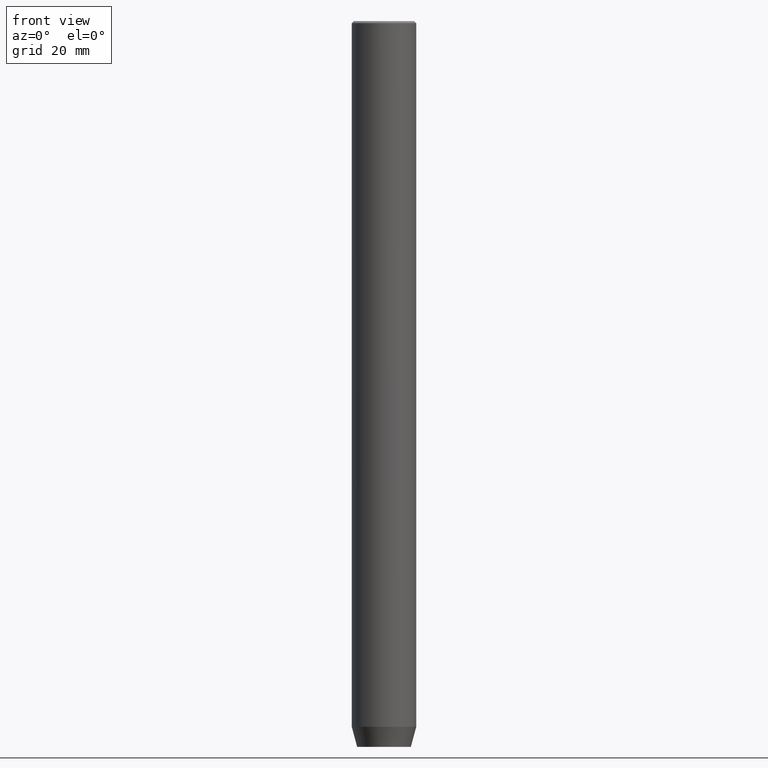
[diagram: clean part render]
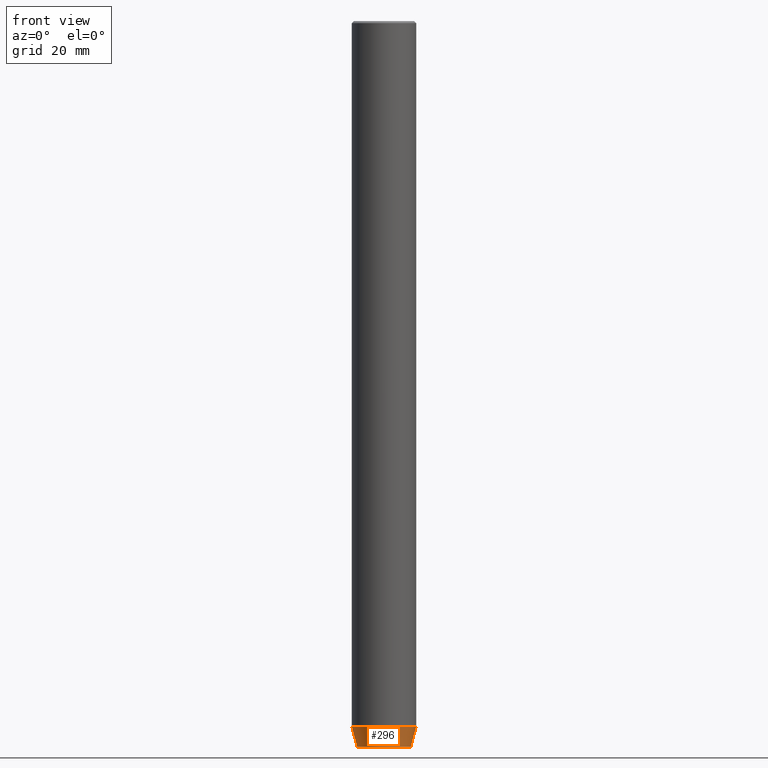
[diagram: same view with one face highlighted and labeled with its STEP entity id]
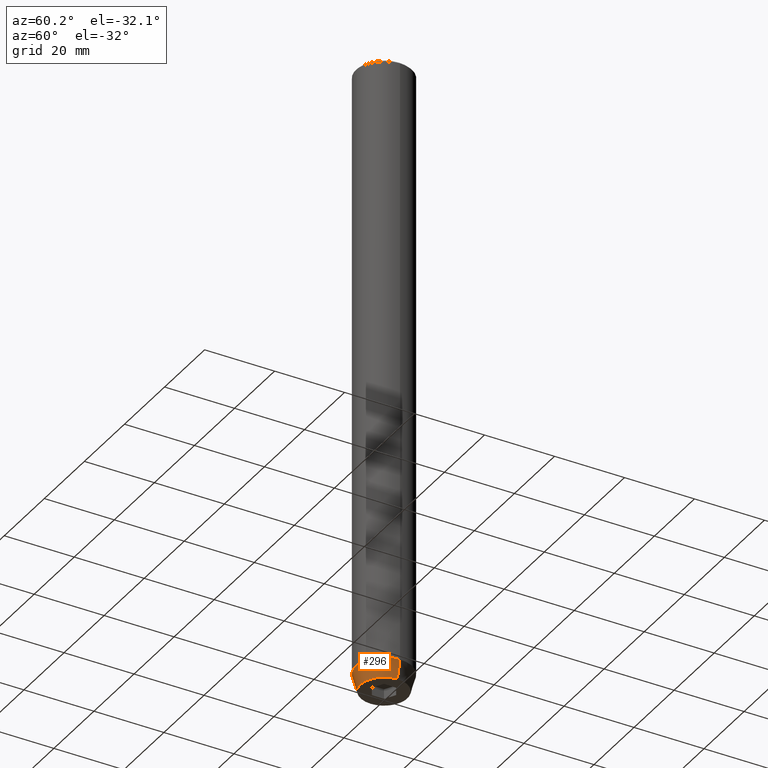
[diagram: same view with one face highlighted and labeled with its STEP entity id]
A machine part, front view. The second image highlights one B-rep face of the part: STEP entity #296.
A second angle (auxiliary view) of the same face is appended — the face is thin or edge-on in the first view.
In plain terms, the highlighted conical surface has half-angle 15 deg.
Its self-contained STEP definition (entity closure, byte-faithful):
#1 = ORIENTED_EDGE ( 'NONE', *, *, #537, .T. ) ;
#3 = DIRECTION ( 'NONE',  ( -0.2588190451025213501, 3.169619151431772337E-17, 0.9659258262890680902 ) ) ;
#21 = VECTOR ( 'NONE', #337, 1000.000000000000000 ) ;
#44 = DIRECTION ( 'NONE',  ( 1.000000000000000000, 0.000000000000000000, 0.000000000000000000 ) ) ;
#49 = DIRECTION ( 'NONE',  ( 1.000000000000000000, 0.000000000000000000, 0.000000000000000000 ) ) ;
#51 = CARTESIAN_POINT ( 'NONE',  ( 0.000000000000000000, 0.000000000000000000, -180.0000000000000000 ) ) ;
#87 = CARTESIAN_POINT ( 'NONE',  ( -6.660254037844381969, 8.976816591066591237E-16, -180.0000000000000000 ) ) ;
#89 = VERTEX_POINT ( 'NONE', #87 ) ;
#94 = CARTESIAN_POINT ( 'NONE',  ( -8.000000000000000000, 9.797174393178825657E-16, -175.0000000000000000 ) ) ;
#98 = ORIENTED_EDGE ( 'NONE', *, *, #343, .T. ) ;
#170 = DIRECTION ( 'NONE',  ( 1.000000000000000000, 0.000000000000000000, 0.000000000000000000 ) ) ;
#196 = AXIS2_PLACEMENT_3D ( 'NONE', #51, #453, #49 ) ;
#197 = EDGE_CURVE ( 'NONE', #547, #319, #292, .T. ) ;
#217 = VERTEX_POINT ( 'NONE', #438 ) ;
#246 = ORIENTED_EDGE ( 'NONE', *, *, #387, .F. ) ;
#254 = CARTESIAN_POINT ( 'NONE',  ( 0.000000000000000000, 0.000000000000000000, -175.0000000000000000 ) ) ;
#261 = AXIS2_PLACEMENT_3D ( 'NONE', #541, #397, #170 ) ;
#286 = CARTESIAN_POINT ( 'NONE',  ( 8.000000000000000000, 0.000000000000000000, -175.0000000000000000 ) ) ;
#292 = CIRCLE ( 'NONE', #383, 8.000000000000000000 ) ;
#293 = LINE ( 'NONE', #286, #21 ) ;
#296 = ADVANCED_FACE ( 'NONE', ( #439 ), #501, .T. ) ;
#319 = VERTEX_POINT ( 'NONE', #359 ) ;
#327 = VECTOR ( 'NONE', #3, 1000.000000000000000 ) ;
#335 = CARTESIAN_POINT ( 'NONE',  ( -8.000000000000000000, 9.797174393178825657E-16, -175.0000000000000000 ) ) ;
#337 = DIRECTION ( 'NONE',  ( 0.2588190451025213501, 0.000000000000000000, 0.9659258262890680902 ) ) ;
#343 = EDGE_CURVE ( 'NONE', #89, #217, #510, .T. ) ;
#359 = CARTESIAN_POINT ( 'NONE',  ( 8.000000000000000000, 0.000000000000000000, -175.0000000000000000 ) ) ;
#383 = AXIS2_PLACEMENT_3D ( 'NONE', #254, #476, #44 ) ;
#387 = EDGE_CURVE ( 'NONE', #89, #547, #415, .T. ) ;
#397 = DIRECTION ( 'NONE',  ( -0.000000000000000000, -0.000000000000000000, 1.000000000000000000 ) ) ;
#404 = EDGE_LOOP ( 'NONE', ( #246, #98, #1, #458 ) ) ;
#415 = LINE ( 'NONE', #94, #327 ) ;
#438 = CARTESIAN_POINT ( 'NONE',  ( 6.660254037844381969, 0.000000000000000000, -180.0000000000000000 ) ) ;
#439 = FACE_OUTER_BOUND ( 'NONE', #404, .T. ) ;
#453 = DIRECTION ( 'NONE',  ( -0.000000000000000000, -0.000000000000000000, 1.000000000000000000 ) ) ;
#458 = ORIENTED_EDGE ( 'NONE', *, *, #197, .F. ) ;
#476 = DIRECTION ( 'NONE',  ( -0.000000000000000000, -0.000000000000000000, 1.000000000000000000 ) ) ;
#501 = CONICAL_SURFACE ( 'NONE', #261, 8.000000000000000000, 0.2617993877991500740 ) ;
#510 = CIRCLE ( 'NONE', #196, 6.660254037844381969 ) ;
#537 = EDGE_CURVE ( 'NONE', #217, #319, #293, .T. ) ;
#541 = CARTESIAN_POINT ( 'NONE',  ( 0.000000000000000000, 0.000000000000000000, -175.0000000000000000 ) ) ;
#547 = VERTEX_POINT ( 'NONE', #335 ) ;